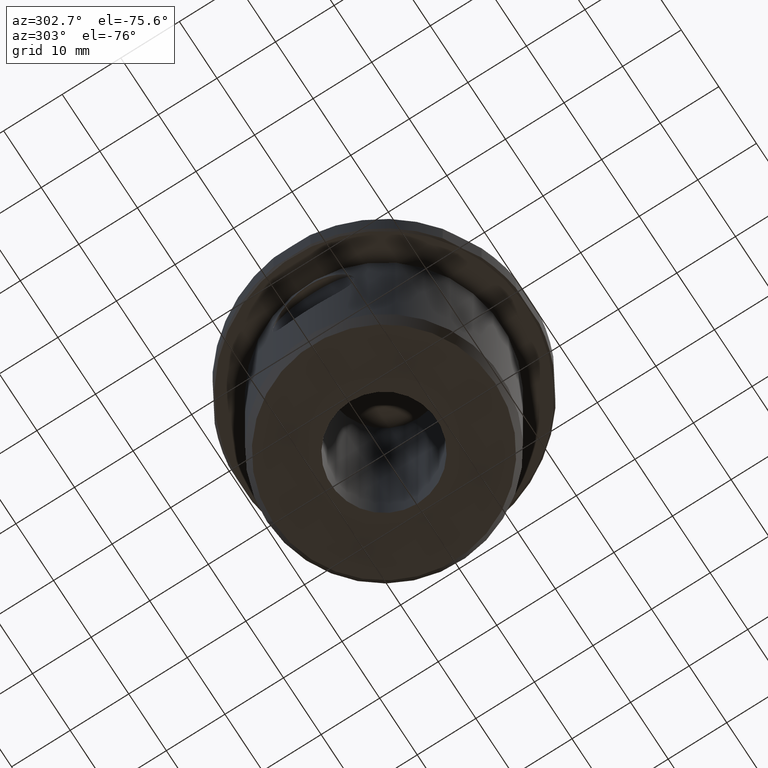
[diagram: clean part render]
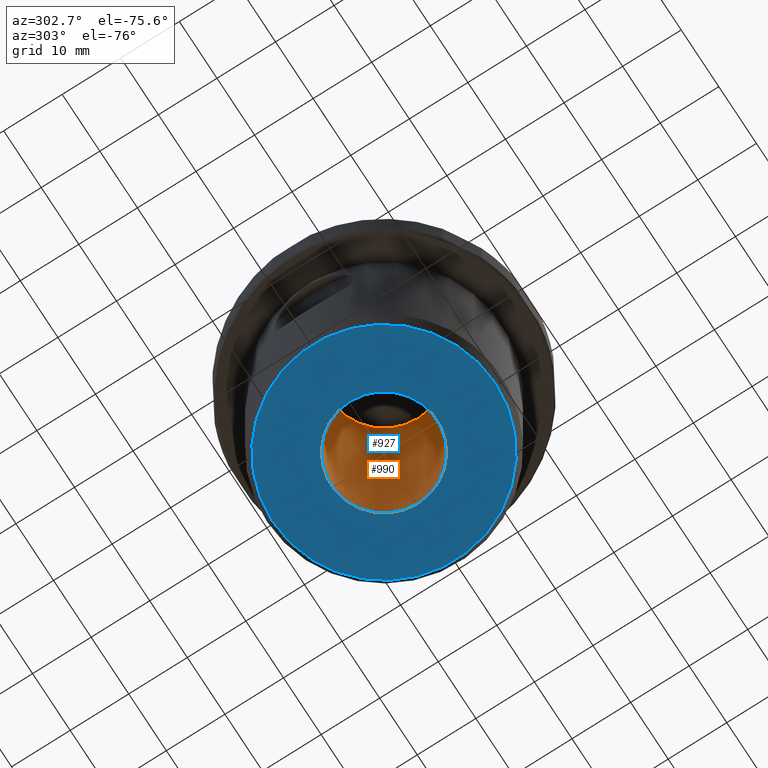
[diagram: same view with the hole feature highlighted: cylindrical wall and planar end face, labeled with their STEP entity ids]
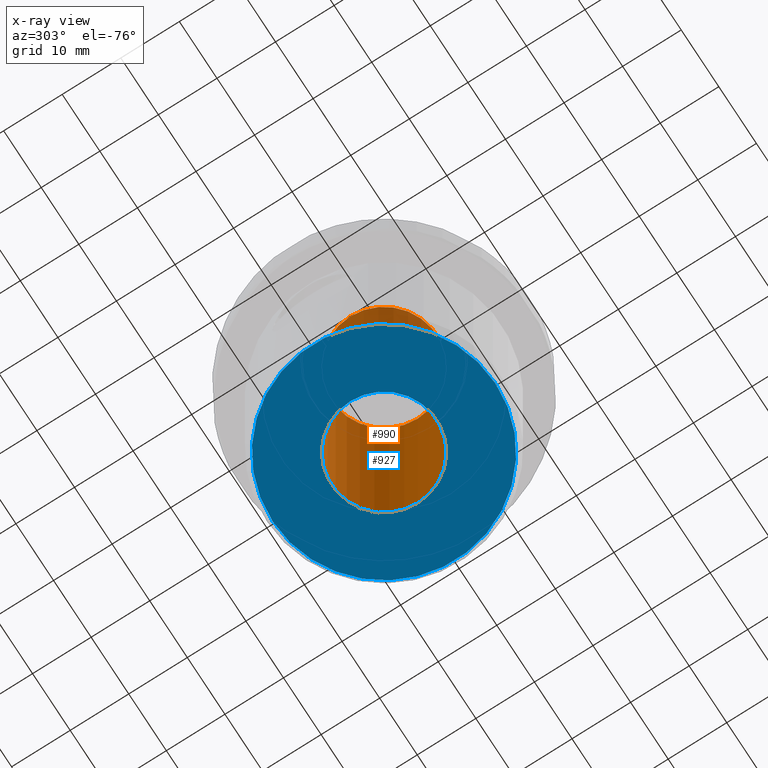
[diagram: x-ray of the same camera — body ghosted, the hole faces saturated]
A machine part, auxiliary view. The highlighted faces form one hole feature of diameter 18 mm: the cylindrical wall (entity #990, orange) and its adjacent planar end face (entity #927, blue) — they share a circular edge in the B-rep.
The next image is the same camera in x-ray (body ghosted, the hole faces saturated) — the bore reads through the body.
Wall:
#149=CYLINDRICAL_SURFACE('',#1127,9.00000000000001);
#416=ORIENTED_EDGE('',*,*,#425,.F.);
#417=ORIENTED_EDGE('',*,*,#550,.T.);
#425=EDGE_CURVE('',#553,#553,#647,.T.);
#550=EDGE_CURVE('',#644,#644,#702,.T.);
#553=VERTEX_POINT('',#1423);
#644=VERTEX_POINT('',#1864);
#647=CIRCLE('',#1010,9.00000000000001);
#702=CIRCLE('',#1128,9.);
#798=EDGE_LOOP('',(#416));
#799=EDGE_LOOP('',(#417));
#900=FACE_BOUND('',#798,.T.);
#901=FACE_BOUND('',#799,.T.);
#990=ADVANCED_FACE('',(#900,#901),#149,.F.);
#1010=AXIS2_PLACEMENT_3D('',#1422,#1140,#1141);
#1127=AXIS2_PLACEMENT_3D('',#1862,#1402,#1403);
#1128=AXIS2_PLACEMENT_3D('',#1863,#1404,#1405);
#1140=DIRECTION('',(0.,0.,1.));
#1141=DIRECTION('',(1.,0.,0.));
#1402=DIRECTION('',(0.,0.,1.));
#1403=DIRECTION('',(1.,0.,0.));
#1404=DIRECTION('',(0.,0.,1.));
#1405=DIRECTION('',(1.,0.,0.));
#1422=CARTESIAN_POINT('',(0.,0.,-49.9937822173509));
#1423=CARTESIAN_POINT('',(9.00000000000001,0.,-49.9937822173509));
#1862=CARTESIAN_POINT('',(0.,0.,-0.993782217350886));
#1863=CARTESIAN_POINT('',(0.,0.,-0.993782217350885));
#1864=CARTESIAN_POINT('',(9.,0.,-0.993782217350885));
End face:
#169=ORIENTED_EDGE('',*,*,#425,.T.);
#170=ORIENTED_EDGE('',*,*,#426,.T.);
#425=EDGE_CURVE('',#553,#553,#647,.T.);
#426=EDGE_CURVE('',#554,#554,#648,.T.);
#553=VERTEX_POINT('',#1423);
#554=VERTEX_POINT('',#1425);
#647=CIRCLE('',#1010,9.00000000000001);
#648=CIRCLE('',#1011,19.);
#705=EDGE_LOOP('',(#169));
#706=EDGE_LOOP('',(#170));
#807=FACE_BOUND('',#705,.T.);
#808=FACE_BOUND('',#706,.T.);
#909=PLANE('',#1009);
#927=ADVANCED_FACE('',(#807,#808),#909,.T.);
#1009=AXIS2_PLACEMENT_3D('',#1421,#1138,#1139);
#1010=AXIS2_PLACEMENT_3D('',#1422,#1140,#1141);
#1011=AXIS2_PLACEMENT_3D('',#1424,#1142,#1143);
#1138=DIRECTION('',(1.22464605849178E-16,1.51929083932157E-64,-1.));
#1139=DIRECTION('',(6.16297582203915E-33,1.,7.54746404904039E-49));
#1140=DIRECTION('',(0.,0.,1.));
#1141=DIRECTION('',(1.,0.,0.));
#1142=DIRECTION('',(1.22464605849178E-16,1.51929083932157E-64,-1.));
#1143=DIRECTION('',(6.16297582203915E-33,1.,7.54746404904039E-49));
#1421=CARTESIAN_POINT('',(6.12246883415752E-15,19.,-49.9937822173509));
#1422=CARTESIAN_POINT('',(0.,0.,-49.9937822173509));
#1423=CARTESIAN_POINT('',(9.00000000000001,0.,-49.9937822173509));
#1424=CARTESIAN_POINT('',(6.12246883415752E-15,7.59550953458587E-63,-49.9937822173509));
#1425=CARTESIAN_POINT('',(6.12246883415752E-15,19.,-49.9937822173509));